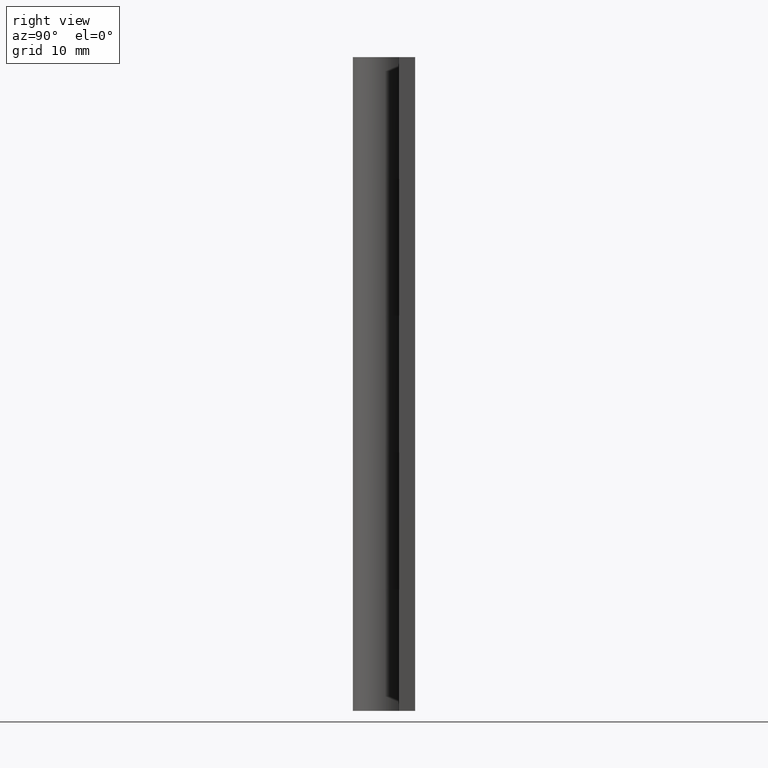
[diagram: clean part render]
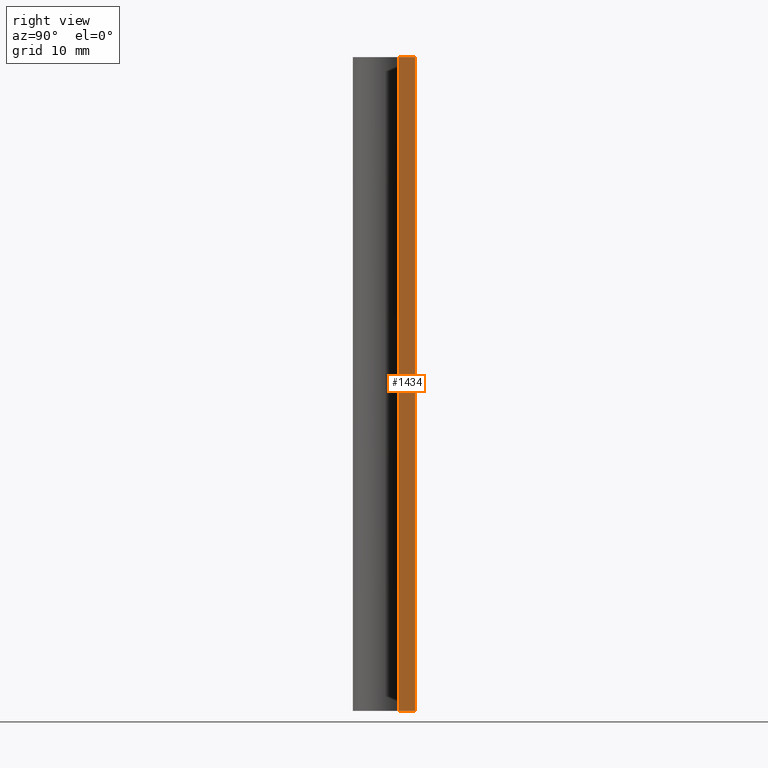
[diagram: same view with one face highlighted and labeled with its STEP entity id]
A machine part, right view. The second image highlights one B-rep face of the part: STEP entity #1434.
In plain terms, the highlighted face is a freeform B-spline surface patch.
Its self-contained STEP definition (entity closure, byte-faithful):
#1201=CARTESIAN_POINT('',(16.0,1.500000000000000,65.0));
#1202=VERTEX_POINT('',#1201);
#1208=CARTESIAN_POINT('',(16.0,3.099998000000000,65.0));
#1209=VERTEX_POINT('',#1208);
#1210=CARTESIAN_POINT('',(16.0,1.500000000000000,65.0));
#1211=CARTESIAN_POINT('',(16.0,3.099998000000000,65.0));
#1212=QUASI_UNIFORM_CURVE('',1,(#1210,#1211),.UNSPECIFIED.,.F.,.U.);
#1213=EDGE_CURVE('',#1202,#1209,#1212,.T.);
#1307=CARTESIAN_POINT('',(16.0,3.099998000000000,0.0));
#1308=VERTEX_POINT('',#1307);
#1314=CARTESIAN_POINT('',(16.0,1.500000000000000,0.0));
#1315=VERTEX_POINT('',#1314);
#1316=CARTESIAN_POINT('',(16.0,1.500000000000000,0.0));
#1317=CARTESIAN_POINT('',(16.0,3.099998000000000,0.0));
#1318=QUASI_UNIFORM_CURVE('',1,(#1316,#1317),.UNSPECIFIED.,.F.,.U.);
#1319=EDGE_CURVE('',#1315,#1308,#1318,.T.);
#1405=CARTESIAN_POINT('',(16.0,3.099998000000000,0.0));
#1406=CARTESIAN_POINT('',(16.0,3.099998000000000,65.0));
#1407=QUASI_UNIFORM_CURVE('',1,(#1405,#1406),.UNSPECIFIED.,.F.,.U.);
#1408=EDGE_CURVE('',#1308,#1209,#1407,.T.);
#1419=CARTESIAN_POINT('',(16.0,1.420080103001106,68.246749874017397));
#1420=CARTESIAN_POINT('',(16.0,1.420080103001106,-3.246751617453247));
#1421=CARTESIAN_POINT('',(16.0,3.179917939914184,68.246749874017397));
#1422=CARTESIAN_POINT('',(16.0,3.179917939914184,-3.246751617453247));
#1423=B_SPLINE_SURFACE_WITH_KNOTS('',1,1,((#1419,#1421),(#1420,#1422)),.UNSPECIFIED.,.F.,.F.,.U.,(2,2),(2,2),(0.0,71.493501491470639),(0.041708334948495,0.958291687403247),.UNSPECIFIED.);
#1424=ORIENTED_EDGE('',*,*,#1213,.F.);
#1425=CARTESIAN_POINT('',(16.0,1.500000000000000,0.0));
#1426=CARTESIAN_POINT('',(16.0,1.500000000000000,65.0));
#1427=QUASI_UNIFORM_CURVE('',1,(#1425,#1426),.UNSPECIFIED.,.F.,.U.);
#1428=EDGE_CURVE('',#1315,#1202,#1427,.T.);
#1429=ORIENTED_EDGE('',*,*,#1428,.F.);
#1430=ORIENTED_EDGE('',*,*,#1319,.T.);
#1431=ORIENTED_EDGE('',*,*,#1408,.T.);
#1432=EDGE_LOOP('',(#1424,#1429,#1430,#1431));
#1433=FACE_OUTER_BOUND('',#1432,.T.);
#1434=ADVANCED_FACE('',(#1433),#1423,.T.);